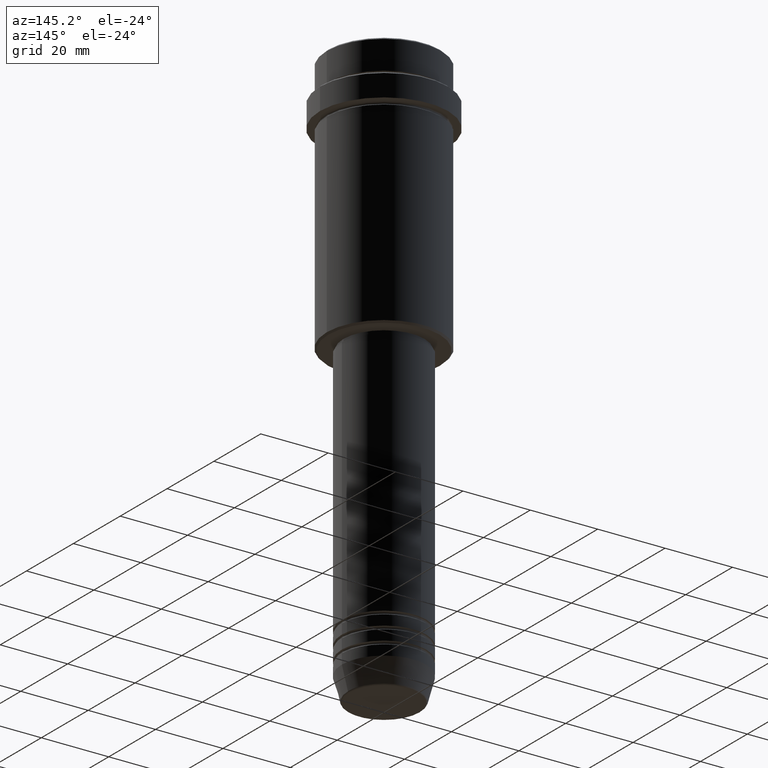
[diagram: clean part render]
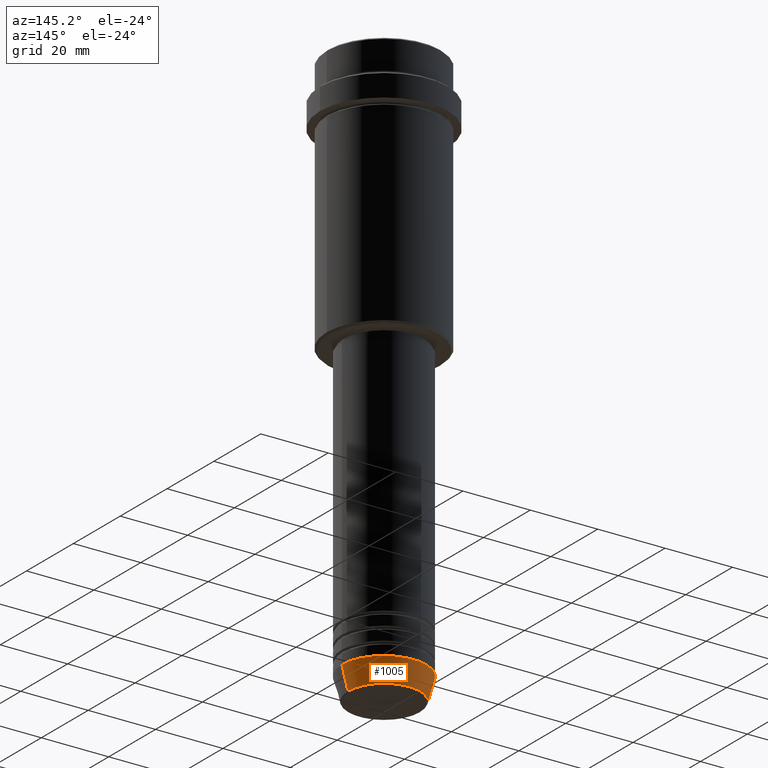
[diagram: same view with one face highlighted and labeled with its STEP entity id]
A machine part, auxiliary view. The second image highlights one B-rep face of the part: STEP entity #1005.
In plain terms, the highlighted conical surface has half-angle 15 deg.
Its self-contained STEP definition (entity closure, byte-faithful):
#62 = CARTESIAN_POINT ( 'NONE',  ( -12.50000000000000000, 1.530808498934191521E-15, -163.0000000000000000 ) ) ;
#71 = VERTEX_POINT ( 'NONE', #62 ) ;
#80 = CARTESIAN_POINT ( 'NONE',  ( -10.72365507213718416, 1.422038742429750121E-15, -169.6294095225512990 ) ) ;
#97 = CARTESIAN_POINT ( 'NONE',  ( 0.000000000000000000, 0.000000000000000000, -163.0000000000000000 ) ) ;
#126 = EDGE_CURVE ( 'NONE', #977, #71, #288, .T. ) ;
#163 = CARTESIAN_POINT ( 'NONE',  ( 12.50000000000000000, 0.000000000000000000, -163.0000000000000000 ) ) ;
#171 = EDGE_CURVE ( 'NONE', #342, #71, #246, .T. ) ;
#246 = CIRCLE ( 'NONE', #1150, 12.50000000000000000 ) ;
#263 = DIRECTION ( 'NONE',  ( 1.000000000000000000, 0.000000000000000000, 0.000000000000000000 ) ) ;
#288 = LINE ( 'NONE', #782, #781 ) ;
#298 = AXIS2_PLACEMENT_3D ( 'NONE', #1286, #731, #610 ) ;
#305 = ORIENTED_EDGE ( 'NONE', *, *, #126, .T. ) ;
#311 = ORIENTED_EDGE ( 'NONE', *, *, #171, .F. ) ;
#342 = VERTEX_POINT ( 'NONE', #163 ) ;
#432 = ORIENTED_EDGE ( 'NONE', *, *, #1326, .F. ) ;
#479 = VECTOR ( 'NONE', #549, 1000.000000000000000 ) ;
#480 = VERTEX_POINT ( 'NONE', #485 ) ;
#485 = CARTESIAN_POINT ( 'NONE',  ( 10.72365507213718416, 0.000000000000000000, -169.6294095225512990 ) ) ;
#513 = EDGE_CURVE ( 'NONE', #480, #977, #967, .T. ) ;
#549 = DIRECTION ( 'NONE',  ( 0.2588190451025213501, 0.000000000000000000, 0.9659258262890680902 ) ) ;
#610 = DIRECTION ( 'NONE',  ( 1.000000000000000000, 0.000000000000000000, 0.000000000000000000 ) ) ;
#711 = FACE_OUTER_BOUND ( 'NONE', #836, .T. ) ;
#720 = CONICAL_SURFACE ( 'NONE', #1132, 12.50000000000000000, 0.2617993877991500740 ) ;
#731 = DIRECTION ( 'NONE',  ( -0.000000000000000000, -0.000000000000000000, 1.000000000000000000 ) ) ;
#768 = LINE ( 'NONE', #1212, #479 ) ;
#781 = VECTOR ( 'NONE', #1390, 1000.000000000000000 ) ;
#782 = CARTESIAN_POINT ( 'NONE',  ( -12.50000000000000000, 1.530808498934191521E-15, -163.0000000000000000 ) ) ;
#824 = ORIENTED_EDGE ( 'NONE', *, *, #513, .T. ) ;
#836 = EDGE_LOOP ( 'NONE', ( #824, #305, #311, #432 ) ) ;
#967 = CIRCLE ( 'NONE', #298, 10.72365507213718416 ) ;
#975 = DIRECTION ( 'NONE',  ( -0.000000000000000000, -0.000000000000000000, 1.000000000000000000 ) ) ;
#977 = VERTEX_POINT ( 'NONE', #80 ) ;
#1005 = ADVANCED_FACE ( 'NONE', ( #711 ), #720, .T. ) ;
#1063 = DIRECTION ( 'NONE',  ( -0.000000000000000000, -0.000000000000000000, 1.000000000000000000 ) ) ;
#1071 = CARTESIAN_POINT ( 'NONE',  ( 0.000000000000000000, 0.000000000000000000, -163.0000000000000000 ) ) ;
#1132 = AXIS2_PLACEMENT_3D ( 'NONE', #97, #1063, #263 ) ;
#1150 = AXIS2_PLACEMENT_3D ( 'NONE', #1071, #975, #1401 ) ;
#1212 = CARTESIAN_POINT ( 'NONE',  ( 12.50000000000000000, 0.000000000000000000, -163.0000000000000000 ) ) ;
#1286 = CARTESIAN_POINT ( 'NONE',  ( 0.000000000000000000, 0.000000000000000000, -169.6294095225512990 ) ) ;
#1326 = EDGE_CURVE ( 'NONE', #480, #342, #768, .T. ) ;
#1390 = DIRECTION ( 'NONE',  ( -0.2588190451025213501, 3.169619151431772337E-17, 0.9659258262890680902 ) ) ;
#1401 = DIRECTION ( 'NONE',  ( 1.000000000000000000, 0.000000000000000000, 0.000000000000000000 ) ) ;